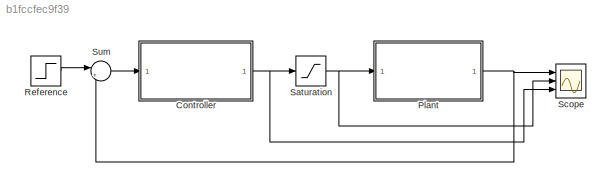
MODEL slx_b1fccfec9f39
KIND model
CONFIG AbsTol = auto
CONFIG FixedStep = auto
CONFIG MaxStep = 0.01
CONFIG MinStep = auto
CONFIG RelTol = 1e-4
CONFIG SampleTimeConstraint = Unconstrained
CONFIG Solver = ode15s
CONFIG SolverMode = Auto
CONFIG SolverName = ode15s
CONFIG StartTime = 0.0
CONFIG StopTime = 0.4
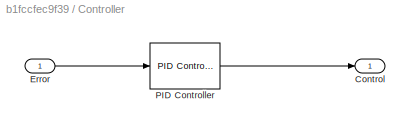
BLOCK [SubSystem] Controller
  Ports = [1, 1]
  RequestExecContextInheritance = off
  Variant = off
BLOCK [Outport] Controller/Control
  IconDisplay = Port number
BLOCK [Inport] Controller/Error
  IconDisplay = Port number
BLOCK [Reference] Controller/PID Controller  REF=simulink/Continuous/PID Controller
  Ports = [1, 1]
  SourceBlock = simulink/Continuous/PID Controller
  SourceType = PID 1dof
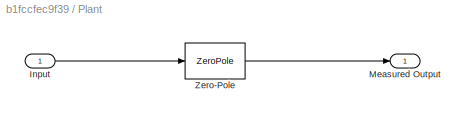
BLOCK [SubSystem] Plant
  Ports = [1, 1]
  RequestExecContextInheritance = off
  Variant = off
BLOCK [Inport] Plant/Input
  IconDisplay = Port number
BLOCK [Outport] Plant/Measured Output
  IconDisplay = Port number
BLOCK [ZeroPole] Plant/Zero-Pole
  Gain = [423.6]
  Poles = [-30.8]
  Zeros = []
BLOCK [Step] Reference
  After = 2000
  SampleTime = 0
  Time = 0
BLOCK [Saturate] Saturation
  InputPortMap = u0
  LowerLimit = 0
  Ports = [1, 1]
  UpperLimit = 255
BLOCK [Scope] Scope
  NumInputPorts = 3
  Ports = [3]
  ScopeSpecificationString = Simulink.scopes.TimeScopeBlockCfg('CurrentConfiguration', extmgr.ConfigurationSet(extmgr.Configuration('Core','General UI',true),extmgr.Configuration('Core','Source UI',true),extmgr.Configuration('Sources','WiredSimulink',true),extmgr.Configuration('Visuals','Time Domain',true,'SerializedDisplays',{struct('MinYLimReal','-296.60537','MaxYLimReal','2669.44834','YLabelReal','','MinYLimMag',' 0.00000'...<+1413ch>
BLOCK [Sum] Sum
  IconShape = round
  InputSameDT = off
  Inputs = |+-
  OutDataTypeStr = Inherit: Inherit via internal rule
  Ports = [2, 1]
  SaturateOnIntegerOverflow = off
LINE Controller/Error:1 -> Controller/PID Controller:1
LINE Controller/PID Controller:1 -> Controller/Control:1
NET Controller:1 -> Saturation:1, Scope:3
LINE Plant/Input:1 -> Plant/Zero-Pole:1
LINE Plant/Zero-Pole:1 -> Plant/Measured Output:1
NET Plant:1 -> Scope:1, Sum:2
LINE Reference:1 -> Sum:1
NET Saturation:1 -> Plant:1, Scope:2
LINE Sum:1 -> Controller:1
note: NET lines group one-source signal fan-out (src -> all destinations, sorted); 1:1 wires keep LINE
